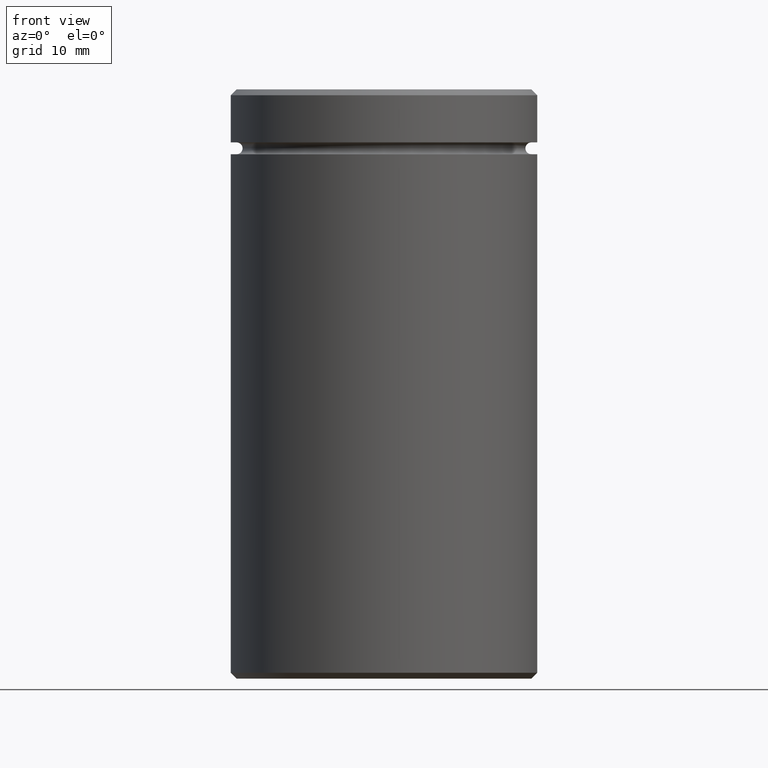
[diagram: clean part render]
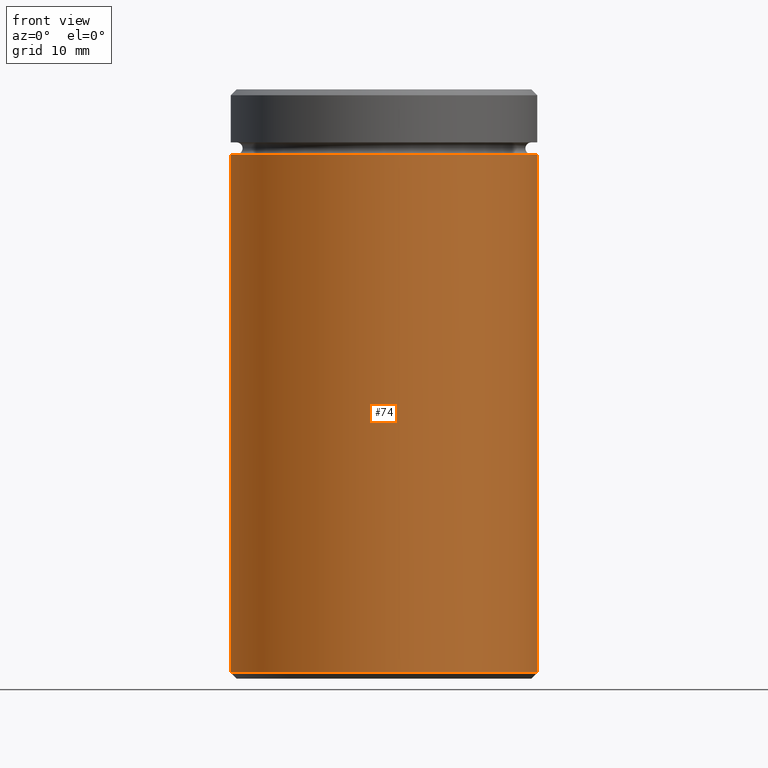
[diagram: same view with one face highlighted and labeled with its STEP entity id]
A machine part, front view. The second image highlights one B-rep face of the part: STEP entity #74.
In plain terms, the highlighted cylindrical surface (partial cylindrical patch) has radius 13 mm, axis along (-0, -0, 1).
Its self-contained STEP definition (entity closure, byte-faithful):
#8 = VERTEX_POINT ( 'NONE', #210 ) ;
#22 = ORIENTED_EDGE ( 'NONE', *, *, #494, .F. ) ;
#26 = EDGE_CURVE ( 'NONE', #242, #8, #173, .T. ) ;
#55 = CARTESIAN_POINT ( 'NONE',  ( 0.000000000000000000, 0.000000000000000000, -5.500000000000000000 ) ) ;
#61 = EDGE_LOOP ( 'NONE', ( #22, #434, #162, #110 ) ) ;
#74 = ADVANCED_FACE ( 'NONE', ( #379 ), #225, .T. ) ;
#79 = CIRCLE ( 'NONE', #372, 13.00000000000000000 ) ;
#83 = DIRECTION ( 'NONE',  ( -1.000000000000000000, 0.000000000000000000, 0.000000000000000000 ) ) ;
#91 = DIRECTION ( 'NONE',  ( 1.000000000000000000, 0.000000000000000000, 0.000000000000000000 ) ) ;
#98 = CIRCLE ( 'NONE', #403, 13.00000000000000000 ) ;
#104 = AXIS2_PLACEMENT_3D ( 'NONE', #525, #216, #413 ) ;
#110 = ORIENTED_EDGE ( 'NONE', *, *, #271, .F. ) ;
#128 = CARTESIAN_POINT ( 'NONE',  ( 13.00000000000000000, 0.000000000000000000, 0.000000000000000000 ) ) ;
#162 = ORIENTED_EDGE ( 'NONE', *, *, #26, .T. ) ;
#163 = CARTESIAN_POINT ( 'NONE',  ( -13.00000000000000000, 1.592040838891559095E-15, -5.500000000000000000 ) ) ;
#173 = LINE ( 'NONE', #128, #424 ) ;
#175 = DIRECTION ( 'NONE',  ( -0.000000000000000000, -0.000000000000000000, 1.000000000000000000 ) ) ;
#187 = VERTEX_POINT ( 'NONE', #163 ) ;
#210 = CARTESIAN_POINT ( 'NONE',  ( 13.00000000000000000, 0.000000000000000000, -5.500000000000000000 ) ) ;
#216 = DIRECTION ( 'NONE',  ( -0.000000000000000000, -0.000000000000000000, 1.000000000000000000 ) ) ;
#219 = DIRECTION ( 'NONE',  ( -0.000000000000000000, -0.000000000000000000, 1.000000000000000000 ) ) ;
#225 = CYLINDRICAL_SURFACE ( 'NONE', #104, 13.00000000000000000 ) ;
#231 = CARTESIAN_POINT ( 'NONE',  ( -13.00000000000000000, 1.592040838891559095E-15, -49.50000000000001421 ) ) ;
#239 = EDGE_CURVE ( 'NONE', #394, #242, #79, .T. ) ;
#242 = VERTEX_POINT ( 'NONE', #255 ) ;
#247 = CARTESIAN_POINT ( 'NONE',  ( 0.000000000000000000, 0.000000000000000000, -49.50000000000001421 ) ) ;
#255 = CARTESIAN_POINT ( 'NONE',  ( 13.00000000000000000, 0.000000000000000000, -49.50000000000001421 ) ) ;
#271 = EDGE_CURVE ( 'NONE', #187, #8, #98, .T. ) ;
#276 = VECTOR ( 'NONE', #440, 1000.000000000000000 ) ;
#372 = AXIS2_PLACEMENT_3D ( 'NONE', #247, #175, #83 ) ;
#379 = FACE_OUTER_BOUND ( 'NONE', #61, .T. ) ;
#394 = VERTEX_POINT ( 'NONE', #231 ) ;
#403 = AXIS2_PLACEMENT_3D ( 'NONE', #55, #219, #91 ) ;
#413 = DIRECTION ( 'NONE',  ( 1.000000000000000000, 0.000000000000000000, 0.000000000000000000 ) ) ;
#424 = VECTOR ( 'NONE', #514, 1000.000000000000000 ) ;
#434 = ORIENTED_EDGE ( 'NONE', *, *, #239, .T. ) ;
#440 = DIRECTION ( 'NONE',  ( -0.000000000000000000, -0.000000000000000000, 1.000000000000000000 ) ) ;
#486 = LINE ( 'NONE', #490, #276 ) ;
#490 = CARTESIAN_POINT ( 'NONE',  ( -13.00000000000000000, 1.592040838891559095E-15, 0.000000000000000000 ) ) ;
#494 = EDGE_CURVE ( 'NONE', #394, #187, #486, .T. ) ;
#514 = DIRECTION ( 'NONE',  ( -0.000000000000000000, -0.000000000000000000, 1.000000000000000000 ) ) ;
#525 = CARTESIAN_POINT ( 'NONE',  ( 0.000000000000000000, 0.000000000000000000, 0.000000000000000000 ) ) ;